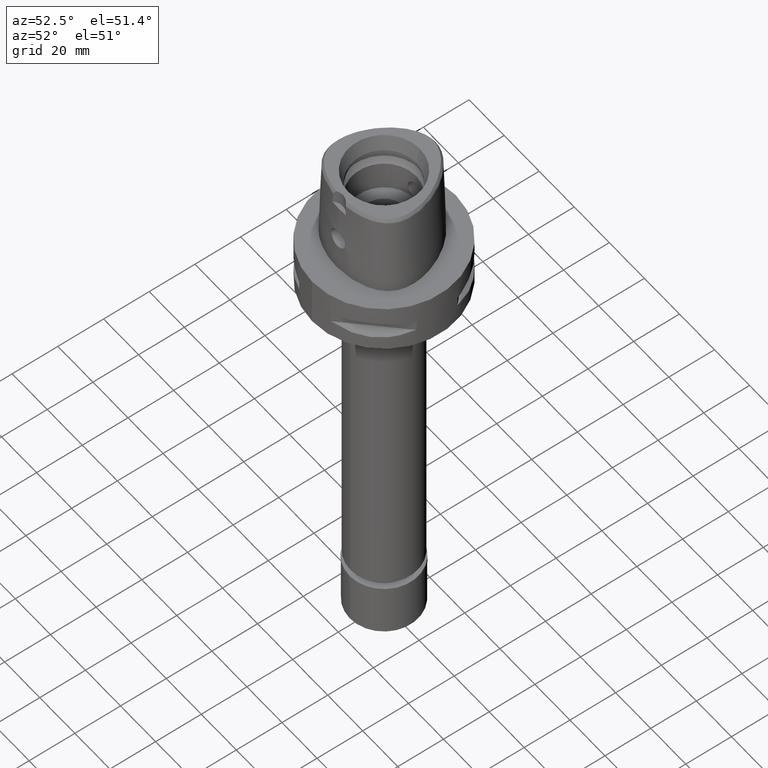
[diagram: clean part render]
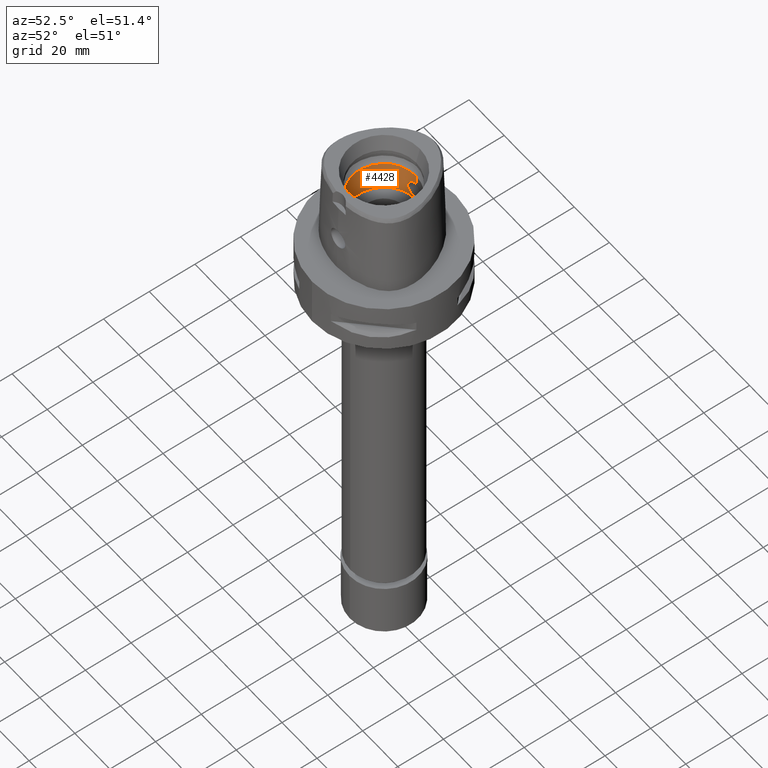
[diagram: same view with one face highlighted and labeled with its STEP entity id]
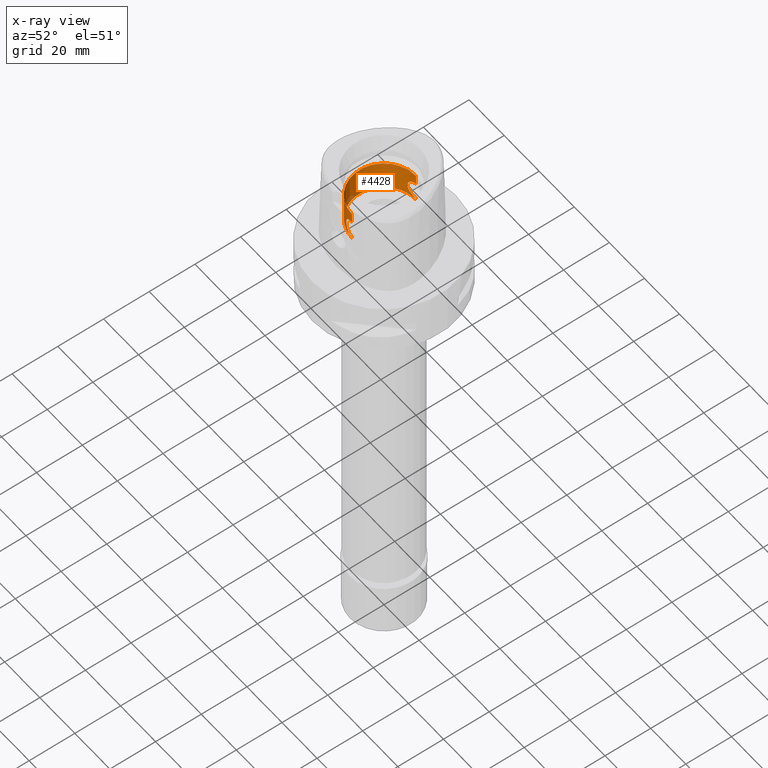
[diagram: x-ray of the same camera — body ghosted, the highlighted face saturated]
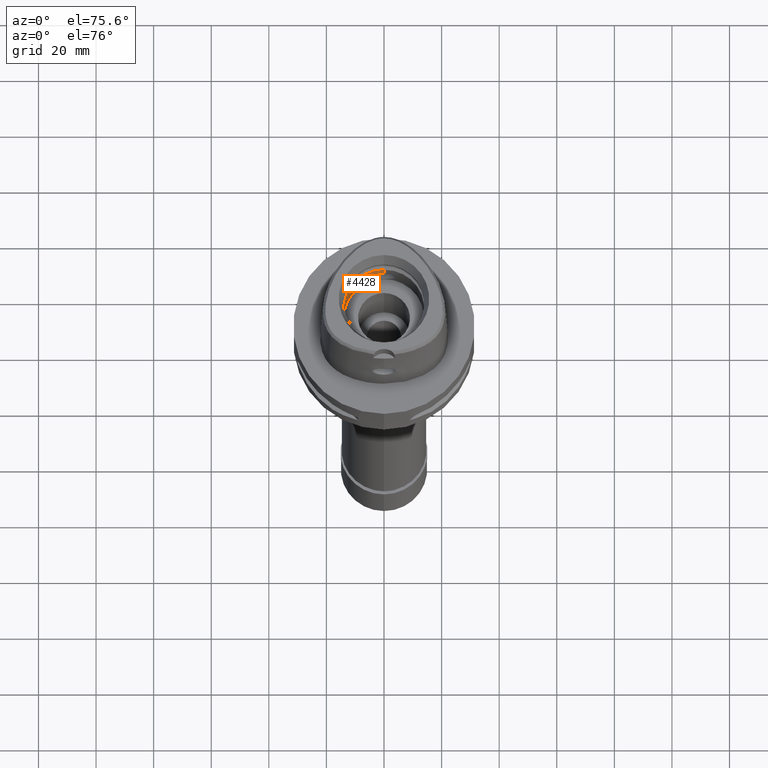
[diagram: same view with one face highlighted and labeled with its STEP entity id]
A machine part, auxiliary view. The second image highlights one B-rep face of the part: STEP entity #4428.
The next image is the same camera in x-ray: the body ghosted, the highlighted face saturated — about 2% of this face is hidden behind the body in this view.
A second angle (auxiliary view) of the same face is appended — the face is thin or edge-on in the first view.
In plain terms, the highlighted cylindrical surface (partial cylindrical patch) has radius 14 mm, axis along (0, 0, -1).
Its self-contained STEP definition (entity closure, byte-faithful):
#11 = CARTESIAN_POINT ( 'NONE',  ( -1.547566346517063263, 13.91402357716646421, 11.75733287492724166 ) ) ;
#24 = CARTESIAN_POINT ( 'NONE',  ( -3.571548927629871972, -13.53786819789194062, 13.58720962466268389 ) ) ;
#28 = DIRECTION ( 'NONE',  ( 0.0000000000000000000, -1.000000000000000000, 0.0000000000000000000 ) ) ;
#45 = CARTESIAN_POINT ( 'NONE',  ( -2.747611394531582985, -13.72766331570516840, 12.52406440584361391 ) ) ;
#57 = CARTESIAN_POINT ( 'NONE',  ( -3.103302679335139480, 13.65226807109472063, 12.89636077996995134 ) ) ;
#79 = VECTOR ( 'NONE', #977, 1000.000000000000000 ) ;
#118 = VERTEX_POINT ( 'NONE', #1516 ) ;
#215 = CARTESIAN_POINT ( 'NONE',  ( -1.515607219318966470, -13.91759941269401679, 11.74427727380425601 ) ) ;
#230 = CARTESIAN_POINT ( 'NONE',  ( -3.864714479020117111, 13.45619997307048976, 14.28714636436816399 ) ) ;
#258 = CARTESIAN_POINT ( 'NONE',  ( 0.0000000000000000000, 14.00000000000000000, 19.55000000000000071 ) ) ;
#261 = CARTESIAN_POINT ( 'NONE',  ( -3.741908129222532242, 13.49067775653094436, 17.04939700293238758 ) ) ;
#311 = CARTESIAN_POINT ( 'NONE',  ( -1.475798815077953297, 13.92189181686728894, 19.27160868556667950 ) ) ;
#320 = CARTESIAN_POINT ( 'NONE',  ( -4.050113263355710203, -13.40149064003832002, 15.25446475094942400 ) ) ;
#322 = VECTOR ( 'NONE', #3431, 1000.000000000000000 ) ;
#338 = CARTESIAN_POINT ( 'NONE',  ( -3.850615438692925441, 13.46054128698138364, 16.78586522626890343 ) ) ;
#350 = CARTESIAN_POINT ( 'NONE',  ( -2.379704458372611242, -13.79688360163908101, 18.78808193815174477 ) ) ;
#373 = CARTESIAN_POINT ( 'NONE',  ( -3.921956714870876937, -13.43982699216160981, 16.51925476873775267 ) ) ;
#397 = CARTESIAN_POINT ( 'NONE',  ( -3.850646335452894142, -13.46053289172331979, 14.21422471265278809 ) ) ;
#424 = CARTESIAN_POINT ( 'NONE',  ( -3.754603410228716243, -13.48713968149403186, 17.01837803991062259 ) ) ;
#447 = DIRECTION ( 'NONE',  ( 0.0000000000000000000, 1.000000000000000000, 0.0000000000000000000 ) ) ;
#448 = CYLINDRICAL_SURFACE ( 'NONE', #3354, 14.00000000000000000 ) ;
#454 = CARTESIAN_POINT ( 'NONE',  ( -1.727809794344939531, 13.89256798824119343, 11.83668232828022226 ) ) ;
#565 = CARTESIAN_POINT ( 'NONE',  ( -1.419904695990059640, -13.92774263002490720, 11.70679343988470222 ) ) ;
#596 = CARTESIAN_POINT ( 'NONE',  ( 0.0000000000000000000, -14.00000000000000000, 11.44999999999999929 ) ) ;
#601 = CARTESIAN_POINT ( 'NONE',  ( -1.706280779661735858, 13.89660308574785041, 19.17787025980741333 ) ) ;
#624 = CARTESIAN_POINT ( 'NONE',  ( -3.953188887918753114, 13.43072025087098176, 14.61008029585293855 ) ) ;
#656 = ORIENTED_EDGE ( 'NONE', *, *, #2250, .T. ) ;
#673 = LINE ( 'NONE', #1081, #79 ) ;
#679 = CARTESIAN_POINT ( 'NONE',  ( -3.927444932112575060, 13.43838053935021470, 16.52350648638920561 ) ) ;
#689 = CARTESIAN_POINT ( 'NONE',  ( -3.742354541686702341, -13.49055394880697101, 13.95167781939159823 ) ) ;
#713 = CARTESIAN_POINT ( 'NONE',  ( -3.759450923523424137, -13.48579145381962086, 17.00637281279924906 ) ) ;
#730 = CARTESIAN_POINT ( 'NONE',  ( -1.549021794252831707, 13.91386076840315944, 11.75793635735830023 ) ) ;
#734 = EDGE_CURVE ( 'NONE', #761, #118, #2615, .T. ) ;
#741 = CARTESIAN_POINT ( 'NONE',  ( -3.587243102480937917, -13.53455456302887683, 17.39863911814657982 ) ) ;
#761 = VERTEX_POINT ( 'NONE', #3836 ) ;
#762 = CARTESIAN_POINT ( 'NONE',  ( -2.838302051199370180, -13.70924245356472149, 12.61087298799256295 ) ) ;
#781 = ORIENTED_EDGE ( 'NONE', *, *, #3435, .F. ) ;
#782 = CARTESIAN_POINT ( 'NONE',  ( -3.736664730344169350, -13.49213433458859690, 13.93798524443347553 ) ) ;
#823 = VERTEX_POINT ( 'NONE', #1302 ) ;
#834 = VERTEX_POINT ( 'NONE', #4552 ) ;
#977 = DIRECTION ( 'NONE',  ( 0.0000000000000000000, 0.0000000000000000000, 1.000000000000000000 ) ) ;
#984 = CARTESIAN_POINT ( 'NONE',  ( -1.307900253193171380, 13.93886113808445870, 19.33405637156883827 ) ) ;
#1008 = CARTESIAN_POINT ( 'NONE',  ( -3.751368138508608840, 13.48803937818517795, 13.97364626212669769 ) ) ;
#1021 = VERTEX_POINT ( 'NONE', #2896 ) ;
#1081 = CARTESIAN_POINT ( 'NONE',  ( 0.0000000000000000000, -14.00000000000000000, 11.00000000000000000 ) ) ;
#1095 = CARTESIAN_POINT ( 'NONE',  ( -0.5006546486599298129, -13.99999999999999822, 19.54999999999999361 ) ) ;
#1119 = CARTESIAN_POINT ( 'NONE',  ( -1.030375183836437447, -13.97148941967904534, 19.45587510961886935 ) ) ;
#1123 = VECTOR ( 'NONE', #1762, 1000.000000000000000 ) ;
#1134 = CARTESIAN_POINT ( 'NONE',  ( -1.656590489344682338, 13.90134304610843685, 11.80420661928255299 ) ) ;
#1147 = CARTESIAN_POINT ( 'NONE',  ( -3.681271145973877612, -13.50751056330118871, 17.19760102083571240 ) ) ;
#1164 = CARTESIAN_POINT ( 'NONE',  ( -3.645841465067568343, -13.51748138502557950, 13.73551786571717770 ) ) ;
#1178 = CARTESIAN_POINT ( 'NONE',  ( -3.749144892059129042, 13.48865712463903144, 13.96819708430278162 ) ) ;
#1188 = DIRECTION ( 'NONE',  ( 0.0000000000000000000, 0.0000000000000000000, 1.000000000000000000 ) ) ;
#1203 = CARTESIAN_POINT ( 'NONE',  ( -0.5006523203701277458, 13.99999999999999822, 11.44999999999999929 ) ) ;
#1272 = AXIS2_PLACEMENT_3D ( 'NONE', #2774, #1188, #447 ) ;
#1302 = CARTESIAN_POINT ( 'NONE',  ( 0.0000000000000000000, -14.00000000000000000, 11.00000000000000000 ) ) ;
#1342 = EDGE_CURVE ( 'NONE', #2271, #3608, #1569, .T. ) ;
#1373 = CARTESIAN_POINT ( 'NONE',  ( -3.713372804620298062, 13.49863003250554705, 17.11687888687580639 ) ) ;
#1375 = EDGE_CURVE ( 'NONE', #1021, #118, #2337, .T. ) ;
#1395 = CARTESIAN_POINT ( 'NONE',  ( -3.742322870021593140, 13.49056255394621751, 17.04839872950607216 ) ) ;
#1396 = ORIENTED_EDGE ( 'NONE', *, *, #1811, .F. ) ;
#1423 = CARTESIAN_POINT ( 'NONE',  ( -2.838271015582821022, 13.70924879168667054, 18.38915749868663241 ) ) ;
#1435 = CARTESIAN_POINT ( 'NONE',  ( -0.8894081547404605326, -13.97195165016888119, 11.54669966603252895 ) ) ;
#1453 = CARTESIAN_POINT ( 'NONE',  ( -3.300607401647019934, 13.60761454809127180, 17.86230143875717857 ) ) ;
#1460 = CARTESIAN_POINT ( 'NONE',  ( -3.770613557277675554, -13.48268284312444010, 16.97834130108717687 ) ) ;
#1482 = CARTESIAN_POINT ( 'NONE',  ( -1.528795325424358920, -13.91615571900188719, 11.74962754506129059 ) ) ;
#1504 = CARTESIAN_POINT ( 'NONE',  ( -1.656595767286538123, -13.90134252112747859, 19.19579101111588670 ) ) ;
#1516 = CARTESIAN_POINT ( 'NONE',  ( 0.0000000000000000000, -14.00000000000000000, 24.19999999999999929 ) ) ;
#1520 = CARTESIAN_POINT ( 'NONE',  ( -1.554509651399959669, 13.91324663011947216, 11.76021276429320217 ) ) ;
#1530 = CARTESIAN_POINT ( 'NONE',  ( -4.027186961551857181, -13.40885172346053267, 14.99585790419512676 ) ) ;
#1532 = ORIENTED_EDGE ( 'NONE', *, *, #1547, .T. ) ;
#1547 = EDGE_CURVE ( 'NONE', #834, #3608, #3207, .T. ) ;
#1549 = CARTESIAN_POINT ( 'NONE',  ( -3.154303789922165091, -13.64073746020203615, 18.04143525478305321 ) ) ;
#1562 = CARTESIAN_POINT ( 'NONE',  ( -2.627480119596087960, 13.75349492294113496, 12.39842961611148908 ) ) ;
#1569 = B_SPLINE_CURVE_WITH_KNOTS ( 'NONE', 3,
 ( #3312, #1785, #2937, #2590, #4390, #3996, #984, #3259, #311, #4820, #4872, #4416, #4846, #601, #3286, #4770, #3702, #4099, #3338, #4794, #1813, #2209, #2542, #1423, #4049, #1453, #3727, #2967, #2889, #4444, #2570, #1373, #4078, #2516, #3656, #261, #1395, #338, #679, #1843, #2913, #4020, #3368, #624, #1764, #230, #2113, #2864, #4366, #2492, #3626, #1008, #1178, #4890, #3753, #1885, #3476, #1957, #57, #3798, #2669, #1562, #1866, #3825, #3389, #4592, #454, #1134, #3084, #2286, #4171, #1520, #730, #11, #4217, #1203, #2716 ),
 .UNSPECIFIED., .F., .F.,
 ( 4, 2, 2, 1, 1, 1, 1, 2, 2, 2, 2, 2, 1, 2, 2, 2, 2, 2, 1, 1, 1, 2, 2, 2, 2, 2, 2, 1, 1, 1, 1, 2, 2, 2, 2, 2, 2, 2, 2, 2, 1, 1, 1, 2, 2, 4 ),
 ( 0.0000000000000000000, 0.06250000000000627276, 0.09375000000000942302, 0.1093750000000110190, 0.1171875000000116990, 0.1210937500000121708, 0.1230468750000124067, 0.1240234375000123929, 0.1250000000000123790, 0.1875000000000209832, 0.2187500000000250355, 0.2343750000000270339, 0.2421875000000279776, 0.2460937500000284772, 0.2500000000000289768, 0.3125000000000421885, 0.3437500000000491829, 0.3593750000000531242, 0.3671875000000545675, 0.3710937500000552891, 0.3730468750000550116, 0.3740234375000549560, 0.3750000000000549005, 0.4375000000000610623, 0.5000000000000671685, 0.5625000000000733857, 0.5937500000000764944, 0.6093750000000778266, 0.6171875000000784928, 0.6210937500000786038, 0.6230468750000788258, 0.6240234375000789369, 0.6250000000000790479, 0.6875000000000693889, 0.7187500000000646150, 0.7343750000000620615, 0.7500000000000595080, 0.8125000000000498490, 0.8437500000000452971, 0.8593750000000428546, 0.8671875000000415223, 0.8710937500000407452, 0.8730468750000404121, 0.8740234375000401901, 0.8750000000000399680, 1.000000000000000000 ),
 .UNSPECIFIED. ) ;
#1720 = CARTESIAN_POINT ( 'NONE',  ( -1.018404179117948338, -13.96318654084665489, 11.57783703750165216 ) ) ;
#1734 = LINE ( 'NONE', #258, #1123 ) ;
#1762 = DIRECTION ( 'NONE',  ( 0.0000000000000000000, 0.0000000000000000000, 1.000000000000000000 ) ) ;
#1764 = CARTESIAN_POINT ( 'NONE',  ( -3.921975965797345864, 13.43982202520088975, 14.48081782444924670 ) ) ;
#1772 = VERTEX_POINT ( 'NONE', #596 ) ;
#1785 = CARTESIAN_POINT ( 'NONE',  ( -0.2485071586022927215, 14.00000000000000178, 19.55000000000000071 ) ) ;
#1811 = EDGE_CURVE ( 'NONE', #823, #1772, #673, .T. ) ;
#1813 = CARTESIAN_POINT ( 'NONE',  ( -2.747584976837744275, 13.72766852682380012, 18.47595993007428561 ) ) ;
#1824 = CARTESIAN_POINT ( 'NONE',  ( -1.582194049270989167, -13.91011473207249693, 19.22819230603255392 ) ) ;
#1843 = CARTESIAN_POINT ( 'NONE',  ( -4.027170957866129442, 13.40885635146396737, 16.00426510743569963 ) ) ;
#1851 = CARTESIAN_POINT ( 'NONE',  ( -2.701838474794363343, -13.73662300799912472, 12.48268142382680423 ) ) ;
#1866 = CARTESIAN_POINT ( 'NONE',  ( -2.379709078430273905, 13.79688296650630086, 12.21192117783972009 ) ) ;
#1871 = ORIENTED_EDGE ( 'NONE', *, *, #1375, .F. ) ;
#1872 = CARTESIAN_POINT ( 'NONE',  ( -2.251569006505755421, -13.81699498205767185, 12.13092774656355033 ) ) ;
#1885 = CARTESIAN_POINT ( 'NONE',  ( -3.378079905932315441, 13.58784208413471717, 13.26197911851899747 ) ) ;
#1895 = CARTESIAN_POINT ( 'NONE',  ( -3.512714141986848393, -13.55365564740572992, 13.47976868659395677 ) ) ;
#1909 = CARTESIAN_POINT ( 'NONE',  ( 0.0000000000000000000, -14.00000000000000000, 19.55000000000000071 ) ) ;
#1923 = CARTESIAN_POINT ( 'NONE',  ( -3.751357602374736810, -13.48804204793206019, 17.02637963144468003 ) ) ;
#1924 = ORIENTED_EDGE ( 'NONE', *, *, #1342, .F. ) ;
#1957 = CARTESIAN_POINT ( 'NONE',  ( -3.154314541828366014, 13.64073506106982059, 12.95857804636997557 ) ) ;
#1966 = CARTESIAN_POINT ( 'NONE',  ( 0.0000000000000000000, -14.00000000000000000, 19.55000000000000071 ) ) ;
#2024 = DIRECTION ( 'NONE',  ( 0.0000000000000000000, -1.000000000000000000, 0.0000000000000000000 ) ) ;
#2113 = CARTESIAN_POINT ( 'NONE',  ( -3.833474857515700940, 13.46507026859897493, 14.19036834976800954 ) ) ;
#2176 = CARTESIAN_POINT ( 'NONE',  ( 0.0000000000000000000, -14.00000000000000000, 11.44999999999999929 ) ) ;
#2197 = CARTESIAN_POINT ( 'NONE',  ( -3.300639952483482187, -13.60760671875573635, 13.13774330014861036 ) ) ;
#2209 = CARTESIAN_POINT ( 'NONE',  ( -2.793361074835304159, 13.71843258446809166, 18.43258965450304387 ) ) ;
#2221 = CARTESIAN_POINT ( 'NONE',  ( -2.549747418830875745, -13.76538165511326461, 12.35244582682788739 ) ) ;
#2248 = CARTESIAN_POINT ( 'NONE',  ( -3.749134642307981213, -13.48865972343165254, 17.03182800215975945 ) ) ;
#2250 = EDGE_CURVE ( 'NONE', #823, #834, #4437, .T. ) ;
#2269 = CARTESIAN_POINT ( 'NONE',  ( -3.927472171667946821, -13.43837298020396531, 14.47659567284983240 ) ) ;
#2271 = VERTEX_POINT ( 'NONE', #3102 ) ;
#2286 = CARTESIAN_POINT ( 'NONE',  ( -1.582187014119300628, 13.91011542848945837, 11.77180470667231127 ) ) ;
#2296 = CARTESIAN_POINT ( 'NONE',  ( -3.668275913388369780, -13.51123484097084315, 13.78282432265185342 ) ) ;
#2301 = DIRECTION ( 'NONE',  ( 0.0000000000000000000, 0.0000000000000000000, -1.000000000000000000 ) ) ;
#2330 = DIRECTION ( 'NONE',  ( 0.0000000000000000000, 0.0000000000000000000, -1.000000000000000000 ) ) ;
#2337 = LINE ( 'NONE', #1909, #322 ) ;
#2492 = CARTESIAN_POINT ( 'NONE',  ( -3.759462088167710991, 13.48578863952880980, 13.99365504285791317 ) ) ;
#2511 = B_SPLINE_CURVE_WITH_KNOTS ( 'NONE', 3,
 ( #2176, #3323, #4780, #1435, #1720, #2950, #3610, #565, #4348, #2525, #215, #2899, #1482, #3739, #3050, #1872, #3068, #2221, #4178, #1851, #45, #3349, #4136, #762, #3417, #2197, #1895, #24, #1164, #2296, #3022, #4896, #2655, #782, #4107, #3710, #689, #397, #2269, #1530, #320, #2974, #3439, #2997, #373, #4503, #4532, #4556, #1460, #713, #424, #1923, #2248, #1147, #741, #2678, #3810, #1549, #2599, #3761, #3395, #4578, #350, #2577, #2626, #4479, #4086, #1504, #4157, #1824, #4857, #3375, #3782, #4877, #1119, #1095, #1966 ),
 .UNSPECIFIED., .F., .F.,
 ( 4, 2, 2, 1, 1, 1, 1, 2, 2, 2, 2, 2, 1, 2, 2, 2, 2, 2, 1, 1, 1, 2, 2, 2, 2, 2, 2, 1, 1, 1, 1, 2, 2, 2, 2, 2, 2, 2, 2, 2, 1, 1, 1, 2, 2, 4 ),
 ( 0.0000000000000000000, 0.06250000000000534295, 0.09375000000000799361, 0.1093750000000092981, 0.1171875000000099087, 0.1210937500000101863, 0.1230468750000103528, 0.1240234375000104639, 0.1250000000000105749, 0.1875000000000231482, 0.2187500000000294487, 0.2343750000000325850, 0.2421875000000342781, 0.2460937500000351386, 0.2500000000000360267, 0.3125000000000479061, 0.3437500000000537903, 0.3593750000000567324, 0.3671875000000582312, 0.3710937500000589528, 0.3730468750000592859, 0.3740234375000591749, 0.3750000000000590639, 0.4375000000000367484, 0.5000000000000144329, 0.5624999999999921174, 0.5937499999999813483, 0.6093749999999760192, 0.6171874999999733546, 0.6210937499999723554, 0.6230468749999722444, 0.6240234374999721334, 0.6249999999999721334, 0.6874999999999703570, 0.7187499999999694689, 0.7343749999999690248, 0.7499999999999685807, 0.8124999999999672484, 0.8437499999999668043, 0.8593749999999665823, 0.8671874999999666933, 0.8710937499999669154, 0.8730468749999670264, 0.8740234374999670264, 0.8749999999999670264, 1.000000000000000000 ),
 .UNSPECIFIED. ) ;
#2516 = CARTESIAN_POINT ( 'NONE',  ( -3.736633029890493063, 13.49214294655579494, 17.06209058601458750 ) ) ;
#2525 = CARTESIAN_POINT ( 'NONE',  ( -1.503662894233193770, -13.91889877167361433, 11.73946455815034540 ) ) ;
#2542 = CARTESIAN_POINT ( 'NONE',  ( -2.823866071662895383, 13.71221379457247380, 18.40322727071348652 ) ) ;
#2570 = CARTESIAN_POINT ( 'NONE',  ( -3.698839523504145799, 13.50269724994669041, 17.14975642281130064 ) ) ;
#2577 = CARTESIAN_POINT ( 'NONE',  ( -2.038818598684785766, -13.84997247354985106, 19.00195841736543656 ) ) ;
#2590 = CARTESIAN_POINT ( 'NONE',  ( -0.8894247253117404384, 13.97195062965881007, 19.45329669174882525 ) ) ;
#2599 = CARTESIAN_POINT ( 'NONE',  ( -3.103292679775163432, -13.65227024482226348, 18.10365108276198853 ) ) ;
#2615 = CIRCLE ( 'NONE', #1272, 14.00000000000000000 ) ;
#2623 = AXIS2_PLACEMENT_3D ( 'NONE', #3128, #2330, #2024 ) ;
#2626 = CARTESIAN_POINT ( 'NONE',  ( -1.930109850035457875, -13.86566995854532713, 19.06233604343407251 ) ) ;
#2655 = CARTESIAN_POINT ( 'NONE',  ( -3.729112155848446353, -13.49423663624999925, 13.91998646419251706 ) ) ;
#2664 = EDGE_CURVE ( 'NONE', #2271, #761, #1734, .T. ) ;
#2669 = CARTESIAN_POINT ( 'NONE',  ( -2.933853596700600086, 13.68926592385840380, 12.70669394136716868 ) ) ;
#2678 = CARTESIAN_POINT ( 'NONE',  ( -3.378066814987424671, -13.58784532178921012, 17.73804054650359063 ) ) ;
#2682 = CARTESIAN_POINT ( 'NONE',  ( 0.0000000000000000000, 0.0000000000000000000, 39.89999999999999858 ) ) ;
#2716 = CARTESIAN_POINT ( 'NONE',  ( 0.0000000000000000000, 14.00000000000000000, 11.44999999999999929 ) ) ;
#2761 = CARTESIAN_POINT ( 'NONE',  ( 0.0000000000000000000, 14.00000000000000000, 11.00000000000000000 ) ) ;
#2769 = EDGE_LOOP ( 'NONE', ( #1396, #656, #1532, #1924, #4482, #2992, #1871, #781 ) ) ;
#2774 = CARTESIAN_POINT ( 'NONE',  ( 0.0000000000000000000, 0.0000000000000000000, 24.19999999999999929 ) ) ;
#2788 = DIRECTION ( 'NONE',  ( 0.0000000000000000000, 0.0000000000000000000, 1.000000000000000000 ) ) ;
#2864 = CARTESIAN_POINT ( 'NONE',  ( -3.792360757509599889, 13.47661125950450867, 14.07783051908534233 ) ) ;
#2889 = CARTESIAN_POINT ( 'NONE',  ( -3.645809327955289891, 13.51748999404847495, 17.26454848001741382 ) ) ;
#2896 = CARTESIAN_POINT ( 'NONE',  ( 0.0000000000000000000, -14.00000000000000000, 19.55000000000000071 ) ) ;
#2899 = CARTESIAN_POINT ( 'NONE',  ( -1.523567979426861063, -13.91672974950344965, 11.74749962673151593 ) ) ;
#2913 = CARTESIAN_POINT ( 'NONE',  ( -4.050104892711150484, 13.40149315181371215, 15.74568388958863885 ) ) ;
#2937 = CARTESIAN_POINT ( 'NONE',  ( -0.5037591461959901595, 13.99298765741470341, 19.52706481479702916 ) ) ;
#2950 = CARTESIAN_POINT ( 'NONE',  ( -1.211459551575376770, -13.94740934406664756, 11.63485212456153484 ) ) ;
#2967 = CARTESIAN_POINT ( 'NONE',  ( -3.571516543620774087, 13.53787670591745318, 17.41285063588180648 ) ) ;
#2974 = CARTESIAN_POINT ( 'NONE',  ( -4.049885881340608229, -13.40156599228166634, 15.74925760300174105 ) ) ;
#2992 = ORIENTED_EDGE ( 'NONE', *, *, #734, .T. ) ;
#2997 = CARTESIAN_POINT ( 'NONE',  ( -3.953169846506250806, -13.43072530374007734, 16.39000292431094863 ) ) ;
#3022 = CARTESIAN_POINT ( 'NONE',  ( -3.698871422629819161, -13.50268861523983155, 13.85031508470320105 ) ) ;
#3050 = CARTESIAN_POINT ( 'NONE',  ( -1.912520758863664128, -13.86948462673673887, 11.92011065720652674 ) ) ;
#3068 = CARTESIAN_POINT ( 'NONE',  ( -2.369398455300971484, -13.79753044473668311, 12.21188691624377576 ) ) ;
#3084 = CARTESIAN_POINT ( 'NONE',  ( -1.621670834909120229, 13.90554318858031557, 11.78869884248120492 ) ) ;
#3102 = CARTESIAN_POINT ( 'NONE',  ( 0.0000000000000000000, 14.00000000000000000, 19.55000000000000071 ) ) ;
#3128 = CARTESIAN_POINT ( 'NONE',  ( 0.0000000000000000000, 0.0000000000000000000, 11.00000000000000000 ) ) ;
#3207 = LINE ( 'NONE', #2761, #3561 ) ;
#3259 = CARTESIAN_POINT ( 'NONE',  ( -1.419931411328843263, 13.92774000101556986, 19.29319657130723442 ) ) ;
#3286 = CARTESIAN_POINT ( 'NONE',  ( -1.912533695368546116, 13.86948292356793999, 19.07988150277855155 ) ) ;
#3312 = CARTESIAN_POINT ( 'NONE',  ( 0.0000000000000000000, 14.00000000000000000, 19.55000000000000071 ) ) ;
#3323 = CARTESIAN_POINT ( 'NONE',  ( -0.2485027662953969707, -14.00000000000000000, 11.45000000000000107 ) ) ;
#3338 = CARTESIAN_POINT ( 'NONE',  ( -2.610433226464533796, 13.75417720155070533, 18.59753253696959874 ) ) ;
#3349 = CARTESIAN_POINT ( 'NONE',  ( -2.793389518559222573, -13.71842687494477886, 12.56743743090693499 ) ) ;
#3354 = AXIS2_PLACEMENT_3D ( 'NONE', #2682, #2301, #28 ) ;
#3368 = CARTESIAN_POINT ( 'NONE',  ( -4.027056039906602436, 13.40886550063078531, 14.99605803406958771 ) ) ;
#3375 = CARTESIAN_POINT ( 'NONE',  ( -1.554517397723791827, -13.91324586573507460, 19.23978401573906893 ) ) ;
#3389 = CARTESIAN_POINT ( 'NONE',  ( -1.930109636665708672, 13.86566995330936258, 11.93766377962881187 ) ) ;
#3395 = CARTESIAN_POINT ( 'NONE',  ( -2.933847913731276069, -13.68926701479273333, 18.29331202188472361 ) ) ;
#3417 = CARTESIAN_POINT ( 'NONE',  ( -3.111572058894387371, -13.65235906340061867, 12.88235674454695534 ) ) ;
#3431 = DIRECTION ( 'NONE',  ( 0.0000000000000000000, 0.0000000000000000000, 1.000000000000000000 ) ) ;
#3435 = EDGE_CURVE ( 'NONE', #1772, #1021, #2511, .T. ) ;
#3439 = CARTESIAN_POINT ( 'NONE',  ( -4.027040795160702125, -13.40886994869189763, 16.00405416032863215 ) ) ;
#3476 = CARTESIAN_POINT ( 'NONE',  ( -3.296919152102985695, 13.60772672205825984, 13.14268644316741330 ) ) ;
#3561 = VECTOR ( 'NONE', #2788, 1000.000000000000000 ) ;
#3608 = VERTEX_POINT ( 'NONE', #4203 ) ;
#3610 = CARTESIAN_POINT ( 'NONE',  ( -1.307875654530308518, -13.93886336247748048, 11.66593528222728082 ) ) ;
#3626 = CARTESIAN_POINT ( 'NONE',  ( -3.754614199676729491, 13.48713695359264619, 13.98164863904192856 ) ) ;
#3656 = CARTESIAN_POINT ( 'NONE',  ( -3.739806467205601059, 13.49126125888957617, 17.05446296452655375 ) ) ;
#3702 = CARTESIAN_POINT ( 'NONE',  ( -2.369389663152188685, 13.79753204156768120, 18.78811906024498768 ) ) ;
#3710 = CARTESIAN_POINT ( 'NONE',  ( -3.741939800522970483, -13.49066915157590252, 13.95067948759578336 ) ) ;
#3727 = CARTESIAN_POINT ( 'NONE',  ( -3.512681639507645670, 13.55366402961913330, 17.52028760979871791 ) ) ;
#3739 = CARTESIAN_POINT ( 'NONE',  ( -1.706258536922767410, -13.89660576681094817, 11.82211908786063326 ) ) ;
#3753 = CARTESIAN_POINT ( 'NONE',  ( -3.587256583663550380, 13.53455093461665371, 13.60138590803785164 ) ) ;
#3761 = CARTESIAN_POINT ( 'NONE',  ( -2.993727262726632699, -13.67639621066011735, 18.22892313807499676 ) ) ;
#3782 = CARTESIAN_POINT ( 'NONE',  ( -1.549029684562814202, -13.91385999032406140, 19.24206037638980504 ) ) ;
#3798 = CARTESIAN_POINT ( 'NONE',  ( -2.993735389580691297, 13.67639455185327080, 12.77108572417169796 ) ) ;
#3810 = CARTESIAN_POINT ( 'NONE',  ( -3.296906617770638981, -13.60772970123745829, 17.85733089895888170 ) ) ;
#3825 = CARTESIAN_POINT ( 'NONE',  ( -2.038819819342676976, 13.84997229830254106, 11.99804223984196483 ) ) ;
#3836 = CARTESIAN_POINT ( 'NONE',  ( 0.0000000000000000000, 14.00000000000000000, 24.19999999999999929 ) ) ;
#3996 = CARTESIAN_POINT ( 'NONE',  ( -1.211482308578159195, 13.94740743061027466, 19.36514076682851027 ) ) ;
#4020 = CARTESIAN_POINT ( 'NONE',  ( -4.049894374208314218, 13.40156309746998353, 15.25086996704122910 ) ) ;
#4049 = CARTESIAN_POINT ( 'NONE',  ( -3.111539906505551123, 13.65236629022881587, 18.11768072911845806 ) ) ;
#4078 = CARTESIAN_POINT ( 'NONE',  ( -3.729080414053006276, 13.49424525667503794, 17.08008844406451132 ) ) ;
#4086 = CARTESIAN_POINT ( 'NONE',  ( -1.727813549612480015, -13.89256761584304201, 19.16331588508584005 ) ) ;
#4099 = CARTESIAN_POINT ( 'NONE',  ( -2.549730099728540367, 13.76538488150578665, 18.64756810904673401 ) ) ;
#4107 = CARTESIAN_POINT ( 'NONE',  ( -3.739838150138208750, -13.49125265106113858, 13.94561326187297290 ) ) ;
#4136 = CARTESIAN_POINT ( 'NONE',  ( -2.823895853842619097, -13.71220774811196996, 12.59680168939620692 ) ) ;
#4157 = CARTESIAN_POINT ( 'NONE',  ( -1.621676901785596980, -13.90554258574081814, 19.21129849982107629 ) ) ;
#4171 = CARTESIAN_POINT ( 'NONE',  ( -1.562764540579728134, 13.91231956686701210, 11.76364757357140256 ) ) ;
#4178 = CARTESIAN_POINT ( 'NONE',  ( -2.610453387570625505, -13.75417339463181143, 12.40248434268413646 ) ) ;
#4203 = CARTESIAN_POINT ( 'NONE',  ( 0.0000000000000000000, 14.00000000000000000, 11.44999999999999929 ) ) ;
#4217 = CARTESIAN_POINT ( 'NONE',  ( -1.030369898905334258, 13.97148968361996246, 11.54412400015087847 ) ) ;
#4348 = CARTESIAN_POINT ( 'NONE',  ( -1.475771051764434683, -13.92189465864898246, 11.72838045394897044 ) ) ;
#4366 = CARTESIAN_POINT ( 'NONE',  ( -3.770625564123103679, 13.48267983315449747, 14.02168929043657108 ) ) ;
#4390 = CARTESIAN_POINT ( 'NONE',  ( -1.018423236774293583, 13.96318520142719244, 19.42215810956013655 ) ) ;
#4416 = CARTESIAN_POINT ( 'NONE',  ( -1.523596634810455708, 13.91672671980191112, 19.25248873875857569 ) ) ;
#4428 = ADVANCED_FACE ( 'NONE', ( #4582 ), #448, .F. ) ;
#4437 = CIRCLE ( 'NONE', #2623, 14.00000000000000000 ) ;
#4444 = CARTESIAN_POINT ( 'NONE',  ( -3.668243869838802240, 13.51124346903940499, 17.21724407477911356 ) ) ;
#4479 = CARTESIAN_POINT ( 'NONE',  ( -1.777134232269260261, -13.88621797757638454, 19.13971969393044148 ) ) ;
#4482 = ORIENTED_EDGE ( 'NONE', *, *, #2664, .T. ) ;
#4503 = CARTESIAN_POINT ( 'NONE',  ( -3.864696955791368627, -13.45620437990212004, 16.71290915946982381 ) ) ;
#4532 = CARTESIAN_POINT ( 'NONE',  ( -3.833458708220079281, -13.46507428754942559, 16.80967835887357609 ) ) ;
#4552 = CARTESIAN_POINT ( 'NONE',  ( 0.0000000000000000000, 14.00000000000000000, 11.00000000000000000 ) ) ;
#4556 = CARTESIAN_POINT ( 'NONE',  ( -3.792347197936994707, -13.47661463724779551, 16.92220550342092622 ) ) ;
#4578 = CARTESIAN_POINT ( 'NONE',  ( -2.627474463386373138, -13.75349579779946652, 18.60157509411420662 ) ) ;
#4582 = FACE_OUTER_BOUND ( 'NONE', #2769, .T. ) ;
#4592 = CARTESIAN_POINT ( 'NONE',  ( -1.777131418496321169, 13.88621825243172303, 11.86027891720768679 ) ) ;
#4770 = CARTESIAN_POINT ( 'NONE',  ( -2.251565892793081058, 13.81699564187111484, 18.86907408762035843 ) ) ;
#4780 = CARTESIAN_POINT ( 'NONE',  ( -0.5037499539317034092, -13.99298791254221896, 11.47293437240235647 ) ) ;
#4794 = CARTESIAN_POINT ( 'NONE',  ( -2.701814129383591556, 13.73662774171638645, 18.51734034741144086 ) ) ;
#4820 = CARTESIAN_POINT ( 'NONE',  ( -1.503691178641936910, 13.91889582088969668, 19.26052413285258424 ) ) ;
#4846 = CARTESIAN_POINT ( 'NONE',  ( -1.528824231395176536, 13.91615265152689673, 19.25036067154918484 ) ) ;
#4857 = CARTESIAN_POINT ( 'NONE',  ( -1.562772071771190152, -13.91231882297569200, 19.23634927600863875 ) ) ;
#4872 = CARTESIAN_POINT ( 'NONE',  ( -1.515635726401806105, 13.91759641463426789, 19.25571122225473886 ) ) ;
#4877 = CARTESIAN_POINT ( 'NONE',  ( -1.547574403145702826, -13.91402278121962688, 19.24266379373510460 ) ) ;
#4890 = CARTESIAN_POINT ( 'NONE',  ( -3.681283234294137952, 13.50750718727463706, 13.80242538970487765 ) ) ;
#4896 = CARTESIAN_POINT ( 'NONE',  ( -3.713404630536637274, -13.49862139996209720, 13.88319418382636705 ) ) ;